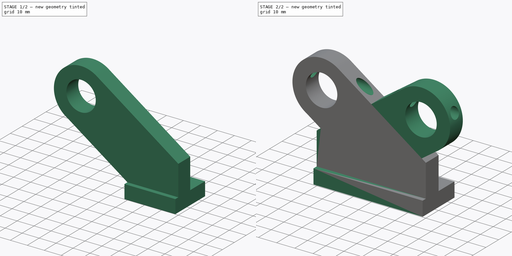
[diagram: build sequence overview — one tinted view per stage of 2, left to right]
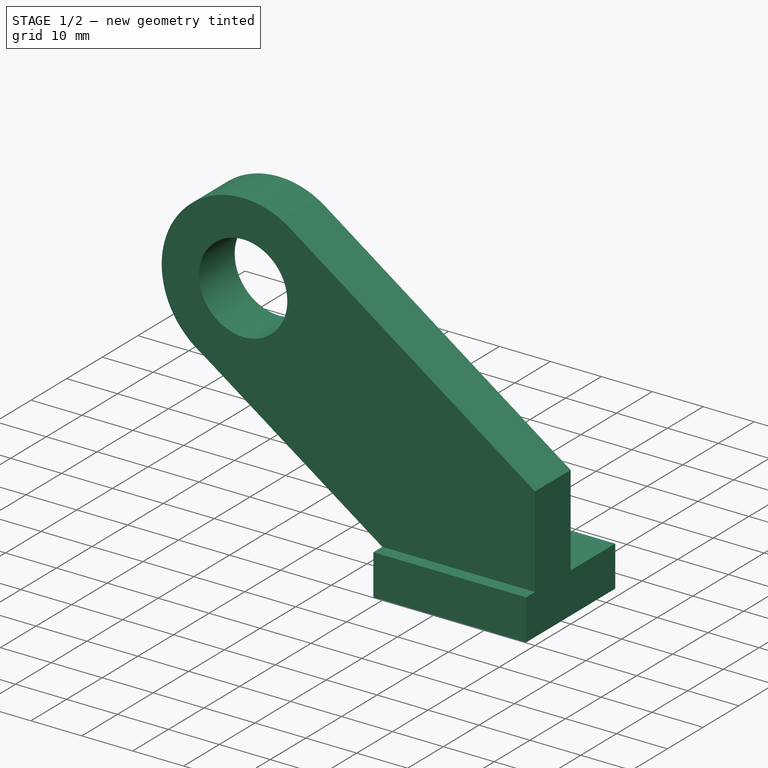
[diagram: stage 1 of 2 — iso view after this stage's code; geometry added in this stage tinted green]
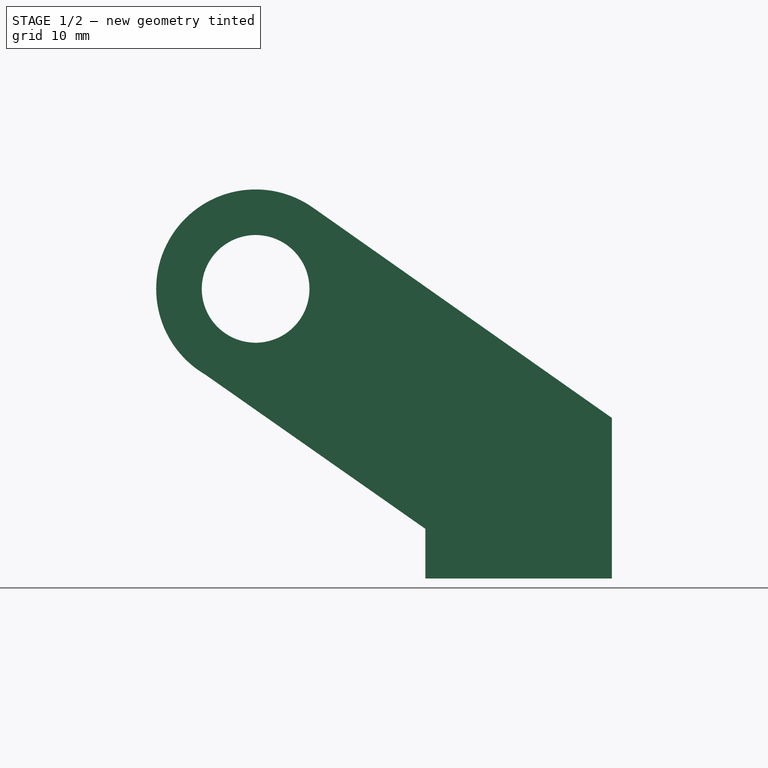
[diagram: stage 1 of 2 — front view after this stage's code; geometry added in this stage tinted green]
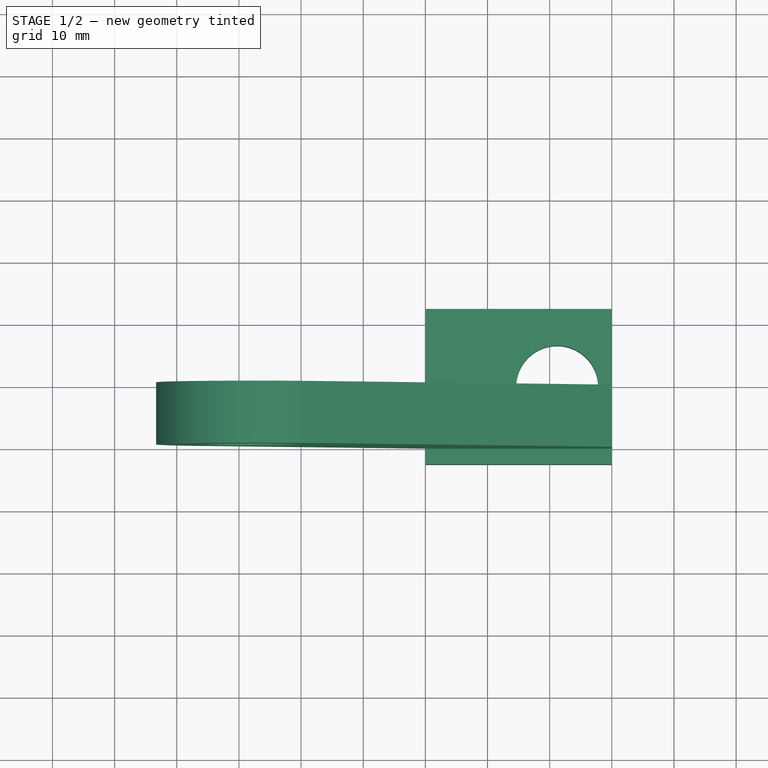
[diagram: stage 1 of 2 — top view after this stage's code; geometry added in this stage tinted green]
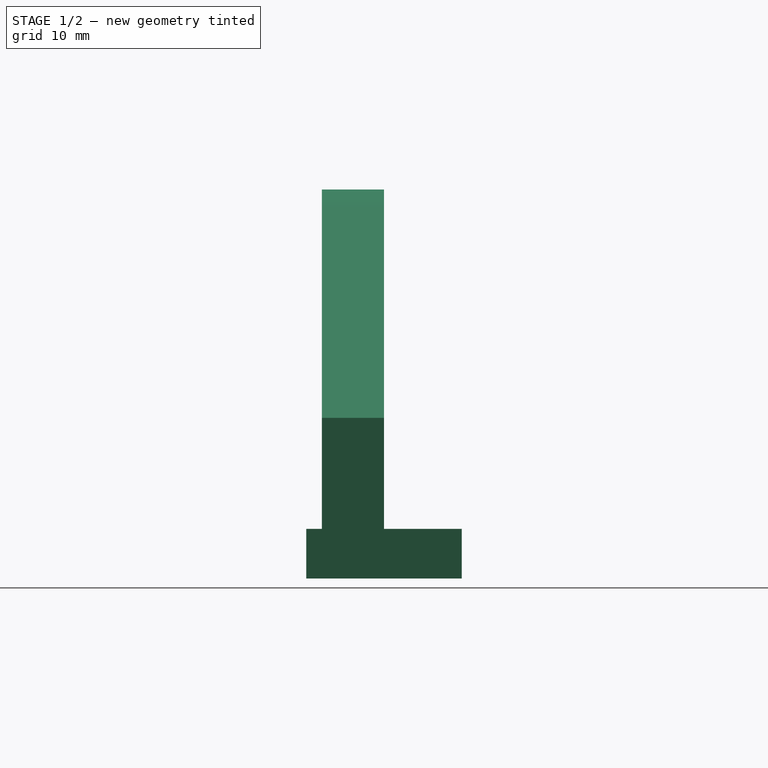
[diagram: stage 1 of 2 — right view after this stage's code; geometry added in this stage tinted green]
FCSTD DOCUMENT  (FreeCAD 1.2R20251119 (Git shallow))
Label: pedestel
License: All rights reserved
LicenseURL: https://en.wikipedia.org/wiki/All_rights_reserved
objects: Sketcher::SketchObject×3, PartDesign::Pad×2, App::Point×1, PartDesign::Hole×1, PartDesign::Mirrored×1, PartDesign::Body×1
note: 18 computed .brp shape members not serialized (recipe doc carries the construction recipe); baked Part::Feature solids carry a one-line shape summary decoded from their .brp

FEATURE [App::Point] Origin001
  Role = Origin
FEATURE [Sketcher::SketchObject] Sketch
  ArcFitTolerance = 1e-06
  AttachmentSupport = -> [Origin]
  ExternalTypes = [0]
  FullyConstrained = false
  MakeInternals = false
  MapMode = 5
  sketch-geometry (6):
    g0: LineSegment StartX=-5.7e-05 StartY=12.5 StartZ=0 EndX=-5.7e-05 EndY=-12.5 EndZ=0
    g1: LineSegment StartX=-5.7e-05 StartY=-12.5 StartZ=0 EndX=30 EndY=-12.5 EndZ=0
    g2: LineSegment StartX=30 StartY=-12.5 StartZ=0 EndX=30 EndY=12.5 EndZ=0
    g3: LineSegment StartX=30 StartY=12.5 StartZ=0 EndX=-5.7e-05 EndY=12.5 EndZ=0
    g4: GeomPoint [constr] X=15 Y=1e-16 Z=0
    g5: Circle CenterX=21.2028 CenterY=0 CenterZ=0 NormalX=0 NormalY=0 NormalZ=1 AngleXU=0 Radius=6.58724
  constraints (13):
    c: Coincident(g0,g1)
    c: Coincident(g1,g2)
    c: Coincident(g2,g3)
    c: Coincident(g3,g0)
    c: Vertical(g0)
    c: Vertical(g2)
    c: Horizontal(g1)
    c: Horizontal(g3)
    c: Symmetric(g2,g0,g4)
    c: PointOnObject(g4,g-1)
    c: DistanceX(g-1,g2) = 30
    c: DistanceY(g2,g2) = 25
    c: PointOnObject(g5,g-1)
FEATURE [PartDesign::Pad] Pad
  Direction = (0,0,1)
  Length = 8
  Length2 = 10
  Profile = -> Sketch
  ReferenceAxis = -> Sketch [N_Axis]
  Refine = true
  SideType = 0
  Suppressed = false
  Type = 0
  Type2 = 0
FEATURE [Sketcher::SketchObject] Sketch001
  ArcFitTolerance = 1e-06
  AttachmentSupport = -> [Origin,YZ_Plane]
  ExternalGeometry = -> [Pad]
  ExternalTypes = [0,0,0,0]
  FullyConstrained = false
  MakeInternals = false
  MapMode = 5
  Placement = pos=(0,0,0) rot=(1,0,0;1.5708rad)
  sketch-geometry (5):
    g0: ArcOfCircle CenterX=-27.3136 CenterY=46.6072 CenterZ=0 NormalX=0 NormalY=0 NormalZ=1 AngleXU=0 Radius=16 StartAngle=0.957693 EndAngle=4.18433
    g1: LineSegment StartX=-18.107 StartY=59.6931 StartZ=0 EndX=30 EndY=25.8475 EndZ=0
    g2: Circle CenterX=-27.3136 CenterY=46.6072 CenterZ=0 NormalX=0 NormalY=0 NormalZ=1 AngleXU=0 Radius=8.66287
    g3: LineSegment StartX=-35.3752 StartY=32.7866 StartZ=0 EndX=-5.7e-05 EndY=8 EndZ=0
    g4: LineSegment StartX=30 StartY=25.8475 StartZ=0 EndX=30 EndY=8 EndZ=0
  constraints (8):
    c: Tangent(g0,g1) = 1.5708
    c: Radius(g0) = 16
    c: Coincident(g2,g0)
    c: Coincident(g3,g-3)
    c: Coincident(g4,g1)
    c: Coincident(g4,g-3)
    c: Vertical(g4)
    c: Coincident(g0,g3)
FEATURE [PartDesign::Pad] Pad001
  BaseFeature = -> Pad
  Direction = (0,-1,2e-16)
  Length = 10
  Length2 = 10
  Profile = -> Sketch001
  ReferenceAxis = -> Sketch001 [N_Axis]
  Refine = true
  SideType = 0
  Suppressed = false
  Type = 0
  Type2 = 0
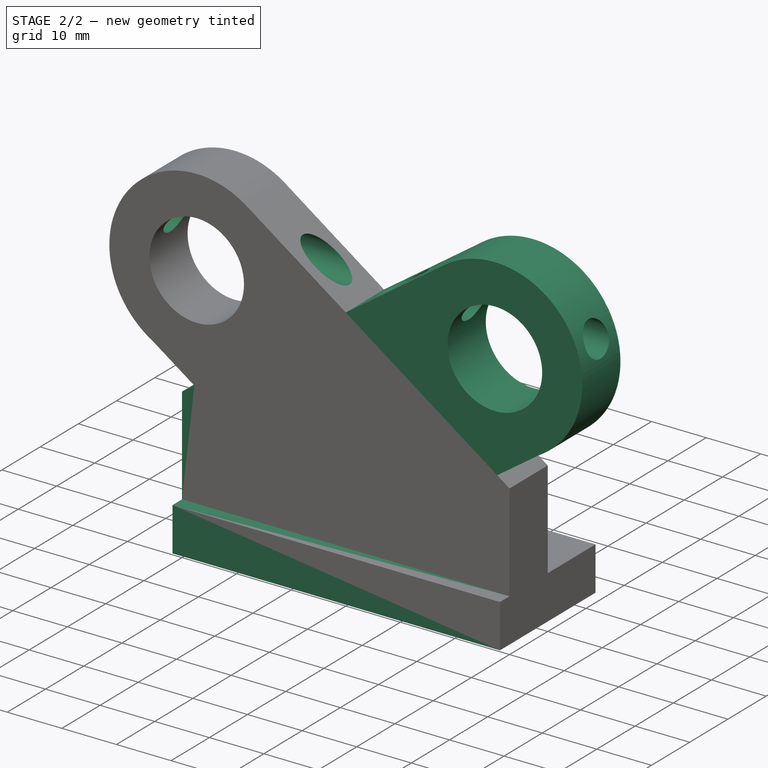
[diagram: stage 2 of 2 — iso view after this stage's code; geometry added in this stage tinted green]
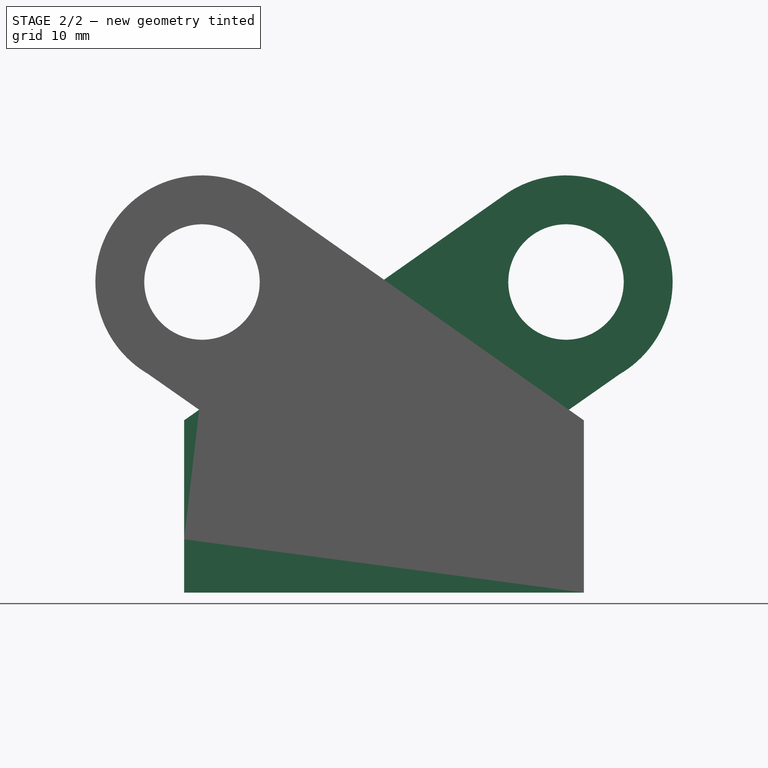
[diagram: stage 2 of 2 — front view after this stage's code; geometry added in this stage tinted green]
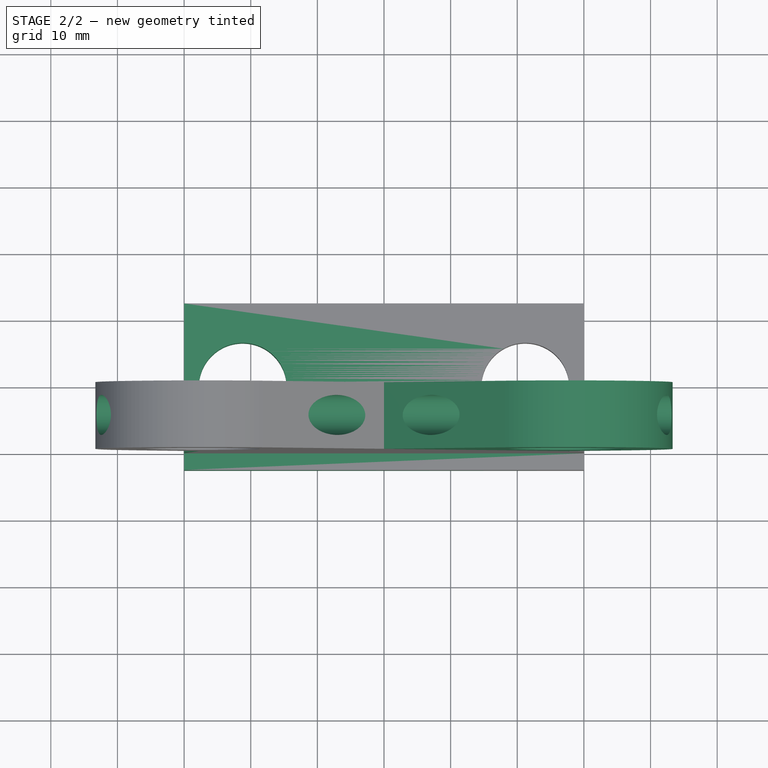
[diagram: stage 2 of 2 — top view after this stage's code; geometry added in this stage tinted green]
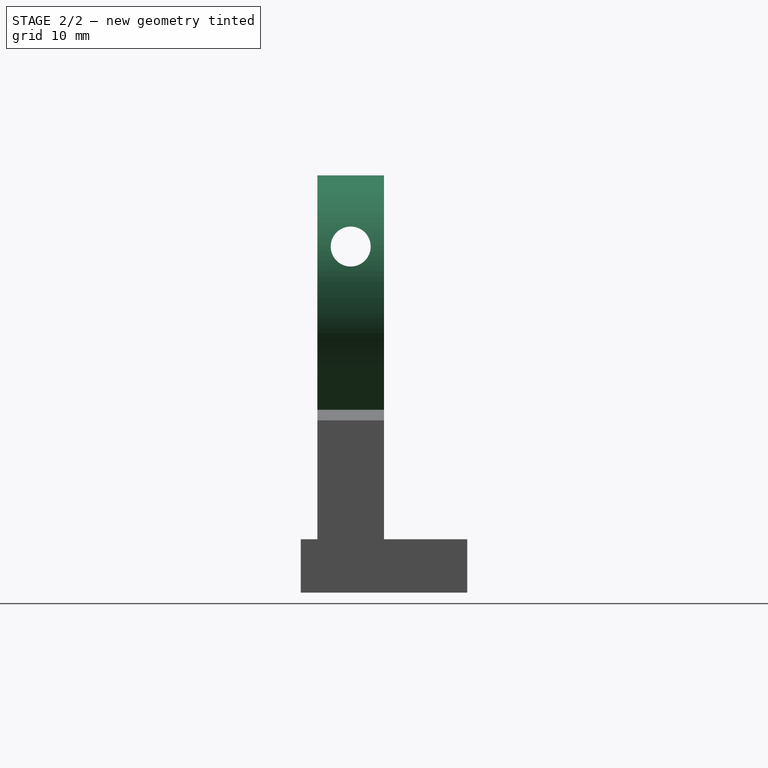
[diagram: stage 2 of 2 — right view after this stage's code; geometry added in this stage tinted green]
FEATURE [Sketcher::SketchObject] Sketch002
  ArcFitTolerance = 1e-06
  AttachmentSupport = -> [Origin]
  ExternalTypes = [0]
  FullyConstrained = false
  MakeInternals = false
  MapMode = 5
  Placement = pos=(0,0,0) rot=(0.57735,0.57735,0.57735;2.0944rad)
  sketch-geometry (1):
    g0: Circle CenterX=-4.99599 CenterY=51.9308 CenterZ=0 NormalX=0 NormalY=0 NormalZ=1 AngleXU=0 Radius=5
  constraints (1):
    c: Diameter(g0) = 10
FEATURE [PartDesign::Hole] Hole
  BaseFeature = -> Pad001
  BaseProfileType = 7
  CustomThreadClearance = 0
  Depth = 125
  DepthType = 0
  Diameter = 6
  DrillForDepth = false
  DrillPoint = 1
  DrillPointAngle = 118
  HoleCutCountersinkAngle = 90
  HoleCutCustomValues = false
  HoleCutDepth = 0
  HoleCutDiameter = 0
  HoleCutType = 0
  ModelThread = false
  Profile = -> Sketch002
  Refine = true
  Suppressed = false
  Tapered = false
  TaperedAngle = 90
  ThreadClass = 0
  ThreadDepth = 125
  ThreadDepthType = 0
  ThreadDiameter = 6
  ThreadDirection = 0
  ThreadFit = 0
  ThreadSize = 0
  ThreadType = 0
  Threaded = false
  UseCustomThreadClearance = false
FEATURE [PartDesign::Mirrored] Mirrored
  BaseFeature = -> Hole
  MirrorPlane = -> YZ_Plane
  Refine = true
  Suppressed = false
  TransformMode = 1
FEATURE [PartDesign::Body] Body
  AllowCompound = true
  Group = -> [Sketch,Pad,Sketch001,Pad001,Sketch002,Hole,Mirrored]
  Origin = -> Origin
  Tip = -> Mirrored
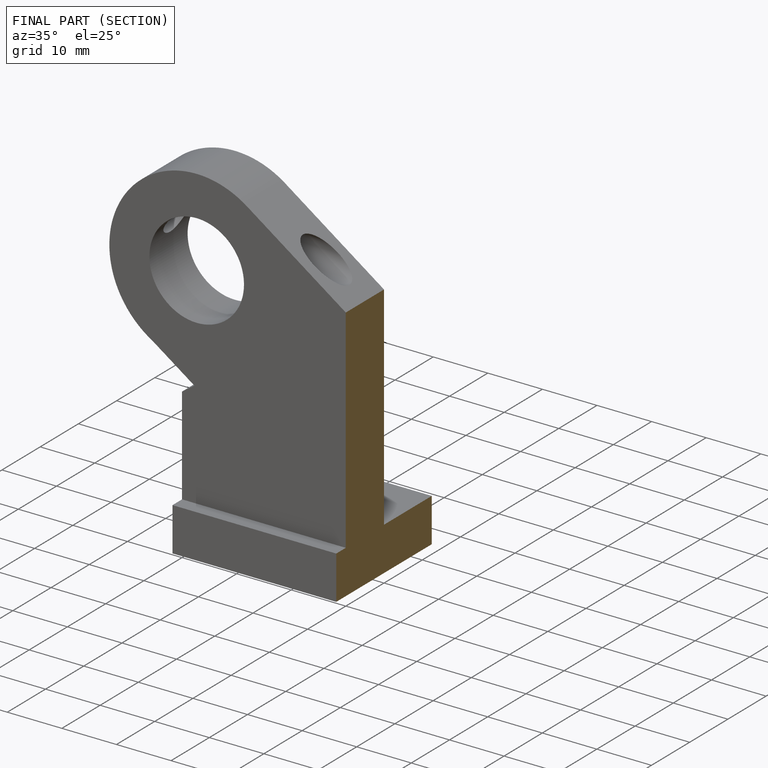
[diagram: finished part — half-section view (interior)]
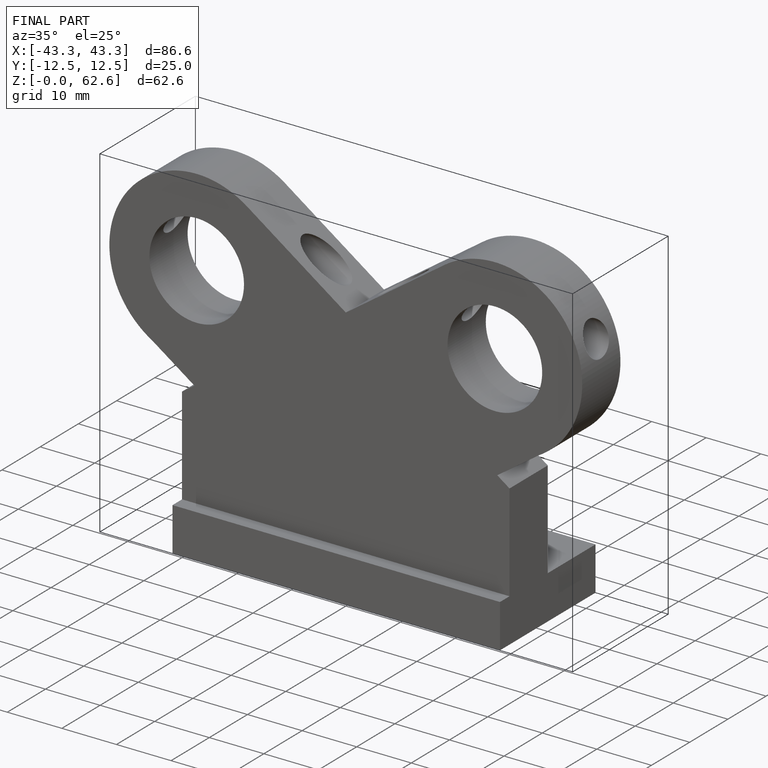
[diagram: finished part — iso view with bounding-box wireframe]
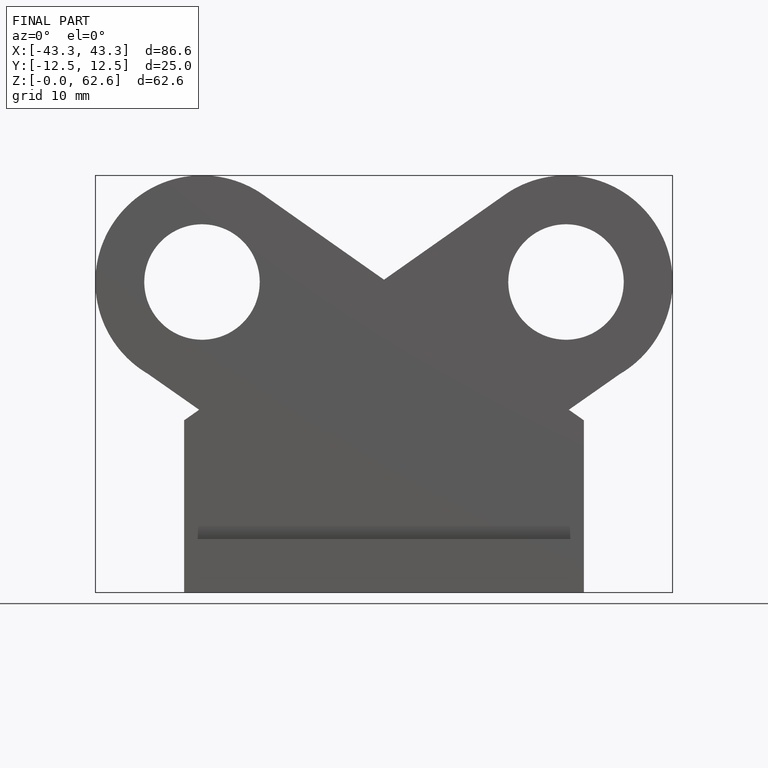
[diagram: finished part — front view with bounding-box wireframe]
